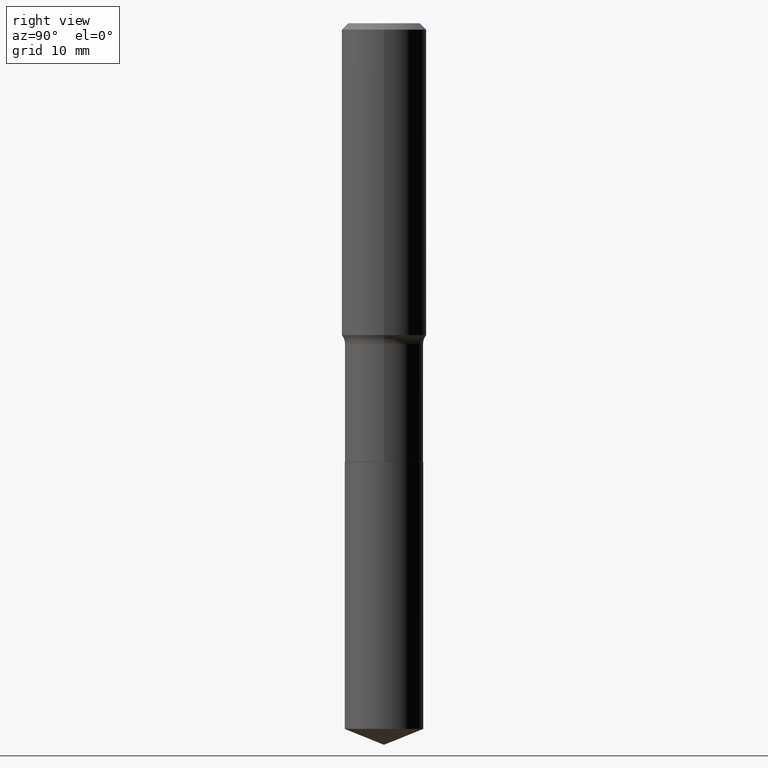
[diagram: clean part render]
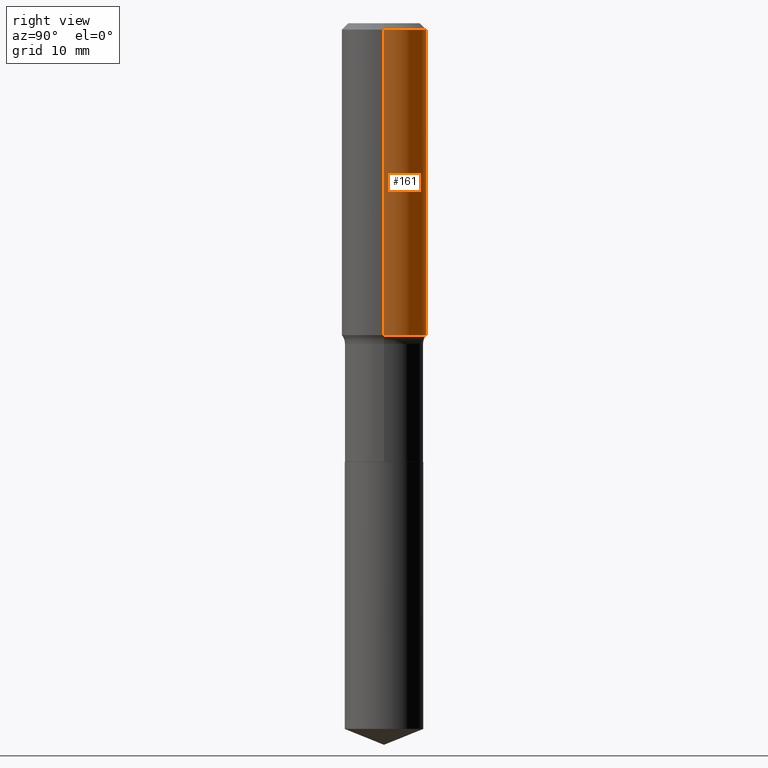
[diagram: same view with one face highlighted and labeled with its STEP entity id]
A machine part, right view. The second image highlights one B-rep face of the part: STEP entity #161.
In plain terms, the highlighted cylindrical surface (partial cylindrical patch) has radius 5.9995 mm, axis along (-0, 0, 1).
Its self-contained STEP definition (entity closure, byte-faithful):
#18 = DIRECTION ( 'NONE',  ( -2.445468806185136877E-29, 3.491481338843145188E-15, 1.000000000000000000 ) ) ;
#34 = DIRECTION ( 'NONE',  ( -2.445468806185136597E-29, 3.491481338843145583E-15, 1.000000000000000000 ) ) ;
#35 = CARTESIAN_POINT ( 'NONE',  ( 0.2361999999999999933, -1.773078968304709514E-15, -0.03543000000000021826 ) ) ;
#58 = CARTESIAN_POINT ( 'NONE',  ( -0.2362000000000001043, 1.678301941865357380E-15, -1.161852468318209317E-29 ) ) ;
#63 = CARTESIAN_POINT ( 'NONE',  ( 0.2362000000000002153, -7.708946087136240734E-15, -1.735529912548379405 ) ) ;
#69 = ORIENTED_EDGE ( 'NONE', *, *, #240, .T. ) ;
#74 = EDGE_CURVE ( 'NONE', #214, #371, #454, .T. ) ;
#91 = DIRECTION ( 'NONE',  ( -2.445468806185136597E-29, 3.491481338843145583E-15, 1.000000000000000000 ) ) ;
#93 = EDGE_CURVE ( 'NONE', #371, #230, #147, .T. ) ;
#121 = CARTESIAN_POINT ( 'NONE',  ( 0.2362000000000001043, -1.649375784469496920E-15, 1.151752954443000508E-29 ) ) ;
#135 = ORIENTED_EDGE ( 'NONE', *, *, #74, .F. ) ;
#137 = DIRECTION ( 'NONE',  ( 1.000000000000000000, -6.982962677686266711E-15, 4.876176775795935793E-29 ) ) ;
#146 = ORIENTED_EDGE ( 'NONE', *, *, #93, .F. ) ;
#147 = CIRCLE ( 'NONE', #467, 0.2361999999999999933 ) ;
#161 = ADVANCED_FACE ( 'NONE', ( #433 ), #286, .T. ) ;
#182 = DIRECTION ( 'NONE',  ( 1.000000000000000000, -6.982962677686266711E-15, 0.000000000000000000 ) ) ;
#183 = ORIENTED_EDGE ( 'NONE', *, *, #350, .T. ) ;
#186 = CIRCLE ( 'NONE', #397, 0.2362000000000002153 ) ;
#206 = EDGE_LOOP ( 'NONE', ( #183, #69, #146, #135 ) ) ;
#208 = CARTESIAN_POINT ( 'NONE',  ( -0.2361999999999999933, -1.413334801385620726E-15, -0.03543000000000021826 ) ) ;
#214 = VERTEX_POINT ( 'NONE', #63 ) ;
#222 = DIRECTION ( 'NONE',  ( -2.445468806185136877E-29, 3.491481338843145188E-15, 1.000000000000000000 ) ) ;
#225 = DIRECTION ( 'NONE',  ( 1.000000000000000000, -6.982962677686266711E-15, 0.000000000000000000 ) ) ;
#230 = VERTEX_POINT ( 'NONE', #208 ) ;
#234 = CARTESIAN_POINT ( 'NONE',  ( 8.664295980313993487E-31, -1.237031838352134079E-16, -0.03543000000000021826 ) ) ;
#240 = EDGE_CURVE ( 'NONE', #289, #230, #391, .T. ) ;
#283 = CARTESIAN_POINT ( 'NONE',  ( 0.000000000000000000, 0.000000000000000000, 0.000000000000000000 ) ) ;
#286 = CYLINDRICAL_SURFACE ( 'NONE', #414, 0.2362000000000001043 ) ;
#289 = VERTEX_POINT ( 'NONE', #366 ) ;
#350 = EDGE_CURVE ( 'NONE', #214, #289, #186, .T. ) ;
#366 = CARTESIAN_POINT ( 'NONE',  ( -0.2362000000000002153, -4.381268360801385448E-15, -1.735529912548379405 ) ) ;
#370 = CARTESIAN_POINT ( 'NONE',  ( 4.244184263338279886E-29, -6.059570302666743420E-15, -1.735529912548379405 ) ) ;
#371 = VERTEX_POINT ( 'NONE', #35 ) ;
#391 = LINE ( 'NONE', #58, #477 ) ;
#397 = AXIS2_PLACEMENT_3D ( 'NONE', #370, #445, #182 ) ;
#414 = AXIS2_PLACEMENT_3D ( 'NONE', #283, #91, #137 ) ;
#433 = FACE_OUTER_BOUND ( 'NONE', #206, .T. ) ;
#437 = VECTOR ( 'NONE', #222, 39.37007874015748143 ) ;
#445 = DIRECTION ( 'NONE',  ( -2.445468806185136597E-29, 3.491481338843145583E-15, 1.000000000000000000 ) ) ;
#454 = LINE ( 'NONE', #121, #437 ) ;
#467 = AXIS2_PLACEMENT_3D ( 'NONE', #234, #34, #225 ) ;
#477 = VECTOR ( 'NONE', #18, 39.37007874015748143 ) ;